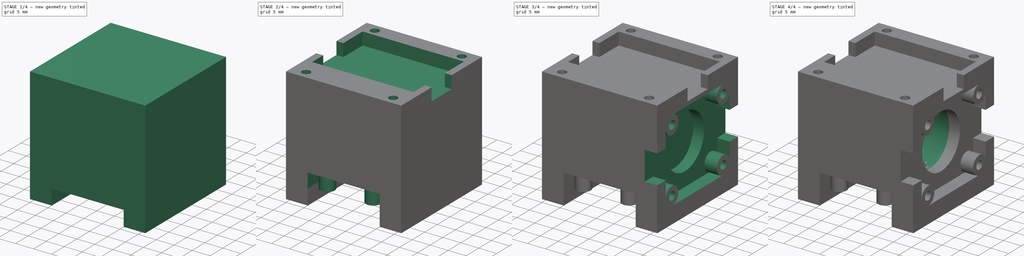
[diagram: build sequence overview — one tinted view per stage of 4, left to right]
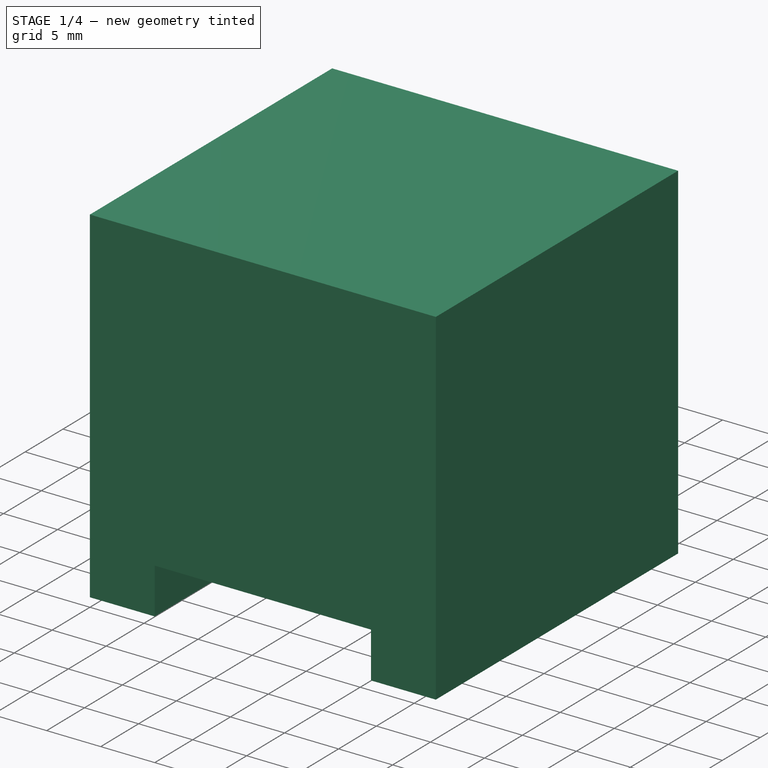
[diagram: stage 1 of 4 — iso view after this stage's code; geometry added in this stage tinted green]
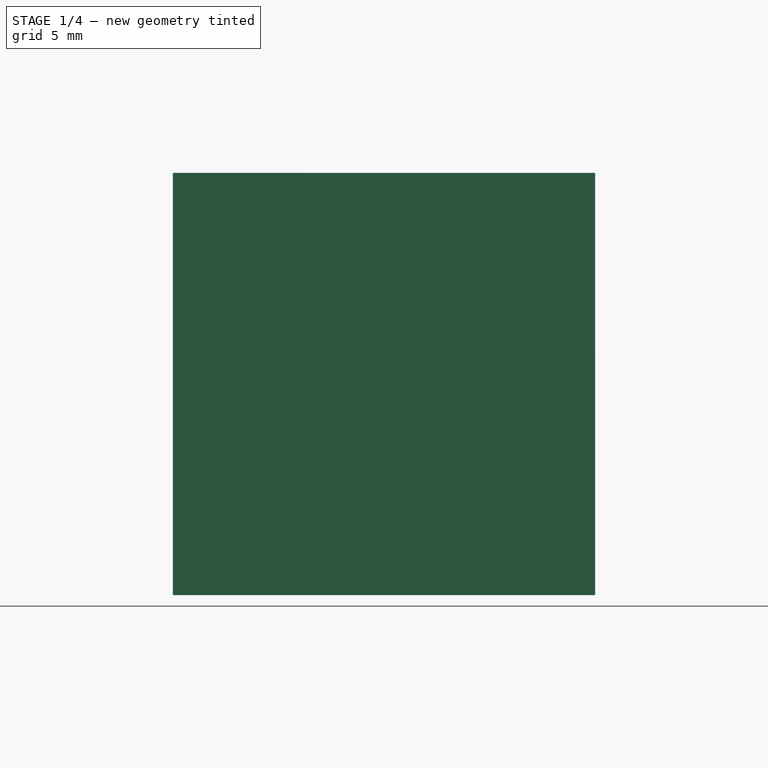
[diagram: stage 1 of 4 — front view after this stage's code; geometry added in this stage tinted green]
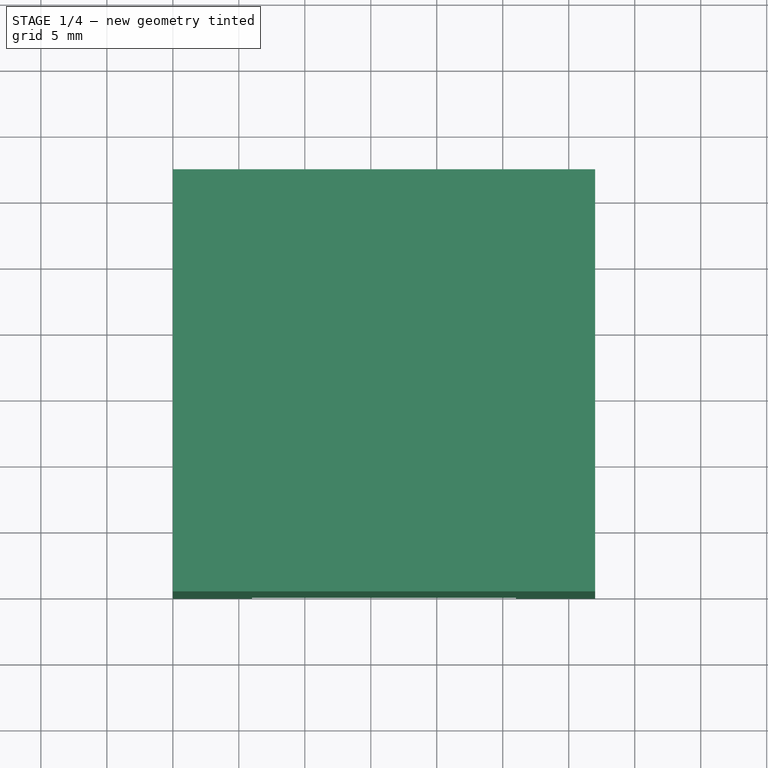
[diagram: stage 1 of 4 — top view after this stage's code; geometry added in this stage tinted green]
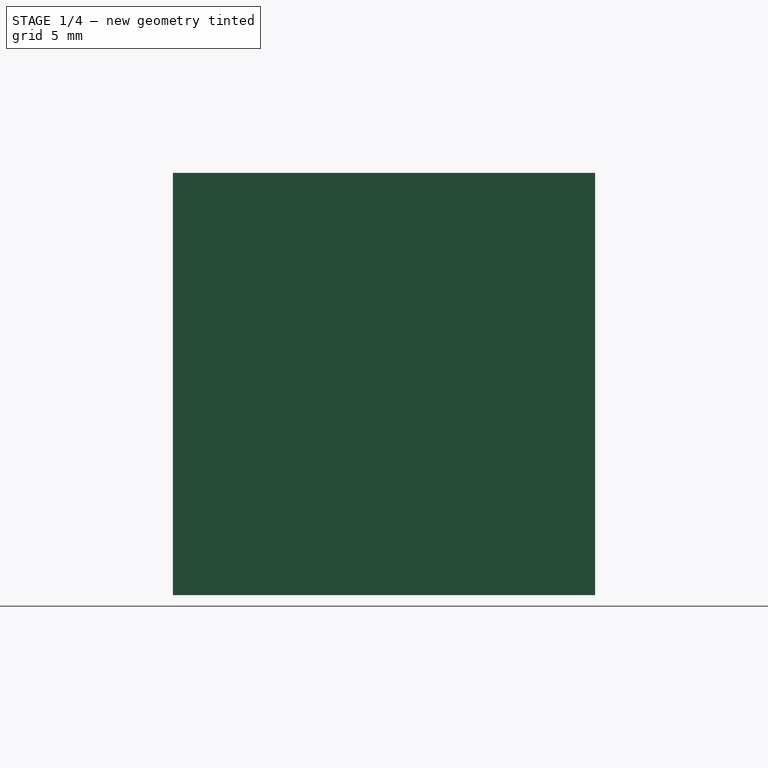
[diagram: stage 1 of 4 — right view after this stage's code; geometry added in this stage tinted green]
FCSTD DOCUMENT  (FreeCAD 0.19R24291 (Git))
Label: cube_v1
License: All rights reserved
LicenseURL: http://en.wikipedia.org/wiki/All_rights_reserved
objects: Sketcher::SketchObject×11, PartDesign::Pocket×10, Spreadsheet::Sheet×1, PartDesign::Pad×1, PartDesign::Hole×1, PartDesign::Body×1
note: 36 computed .brp shape members not serialized (recipe doc carries the construction recipe); baked Part::Feature solids carry a one-line shape summary decoded from their .brp

FEATURE [Spreadsheet::Sheet] Spreadsheet  label="cfg"
  cells = A2=side; B2(side)==32mm; E2=m2.5 through hole; F2(m25_through_d)==2.5mm; E3=m2.5 tapped hole; F3(m25_tapped_d)==2.3mm; A4=Trinkey dimensions; E4=m2.5 panhead thickness; F4(m25_panhead_t)==1.75mm; A5=hole x C-C; B5(trinkey_hole_x)==12.715mm; A6=hole y C-C; B6(trinkey_hole_y)==20.33mm; A7=clearance x; B7(trinkey_clearance_x)==20mm; C7=(excl USB); A8=clearance y; B8(trinkey_clearance_y)==27mm; A9=board thickness; B9(trinkey_board_t)==2.5mm; E9=stemma_clearance_l; F9(stemma_clearance_l)==8mm; A10=board x; B10(trinkey_board_x)==17.89mm; E10=stemma_clearance_h; F10(stemma_clearance_h)==3.5mm; A11=board y; B11(trinkey_board_y)==25.65mm; C11=(excl USB); A12=hole post diam; B12(trinkey_hole_post_d)==4mm; A13=hole post height; B13(trinkey_hole_post_h)==4mm; A15=SCD41 dimensions; A16=scd41_hole_x; B16(scd41_hole_x)==17.785mm; A17=scd41_hole_y; B17(scd41_hole_y)==20.325mm; E17=cone height; F17(cone_h)==side - scd41_sensor_clearance_h; A18=scd41_smd_clearance_h; B18(scd41_smd_clearance_h)==3.5mm; E18=cone base diam; F18(cone_db)==fan_d; A19=scd41_sensor_clearance_d; B19(scd41_sensor_clearance_d)==15mm; E19=cone tip diam; F19(cone_dt)==scd41_sensor_clearance_d; A20=scd41_sensor_clearance_h; B20(scd41_sensor_clearance_h)==6.5mm; E20=cone leg; F20(cone_leg)==(cone_db - cone_dt) / 2; E21=cone_angle; F21(cone_angle)==atan(cone_leg / cone_h) + 90deg; A22=OLED dimensions; A23=oled_hole_x; B23(oled_hole_x)==24.14mm; A24=oled_hole_y; B24(oled_hole_y)==27.205mm; A25=oled_hole_h; B25(oled_hole_h)==4mm; A26=post diam; B26(oled_post_d)==4mm; A27=clearance y; B27(oled_clearance_y)==20mm; A29=fan dimensions; A30=fan_hole_x; B30(fan_hole_x)==24.045mm; A31=fan_hole_y; B31(fan_hole_y)==fan_hole_x; A32=fan_d; B32(fan_d)==27.9mm; A33=fan_clearance_x; B33(fan_clearance_x)==31mm; A34=fan_clearance_h; B34(fan_clearance_h)==7.75mm; A36=speaker dimensions; A40=buttonpad dimensions
FEATURE [Sketcher::SketchObject] Sketch
  FullyConstrained = true
  MapMode = 5
  Support = -> [XY_Plane]
  expr: Constraints[10] = <<cfg>>.side
  expr: Constraints[9] = <<cfg>>.side
  sketch-geometry (4):
    g0: LineSegment StartX=0 StartY=0 StartZ=0 EndX=32 EndY=0 EndZ=0
    g1: LineSegment StartX=32 StartY=0 StartZ=0 EndX=32 EndY=32 EndZ=0
    g2: LineSegment StartX=32 StartY=32 StartZ=0 EndX=0 EndY=32 EndZ=0
    g3: LineSegment StartX=0 StartY=32 StartZ=0 EndX=0 EndY=0 EndZ=0
  constraints (11):
    c: Coincident(g0,g1)
    c: Coincident(g1,g2)
    c: Coincident(g2,g3)
    c: Coincident(g3,g0)
    c: Horizontal(g0)
    c: Horizontal(g2)
    c: Vertical(g1)
    c: Vertical(g3)
    c: Coincident(g0,g-1)
    c: Distance(g2) = 32
    c: Distance(g3) = 32
FEATURE [PartDesign::Pad] Pad  label="cube"
  Direction = (1,1,1)
  Length = 32
  Length2 = 100
  Profile = -> Sketch
  Type = 0
  expr: Length = <<cfg>>.side
FEATURE [Sketcher::SketchObject] Sketch001
  FullyConstrained = true
  MapMode = 5
  Placement = pos=(0,0,0) rot=(1,0,0;3.14159rad)
  Support = -> [Pad]
  expr: Constraints[13] = <<cfg>>.trinkey_clearance_y
  expr: Constraints[12] = <<cfg>>.trinkey_clearance_x
  expr: Constraints[10] = <<cfg>>.side / 2
  sketch-geometry (5):
    g0: LineSegment StartX=6 StartY=0 StartZ=0 EndX=26 EndY=0 EndZ=0
    g1: LineSegment StartX=26 StartY=0 StartZ=0 EndX=26 EndY=-27 EndZ=0
    g2: LineSegment StartX=26 StartY=-27 StartZ=0 EndX=6 EndY=-27 EndZ=0
    g3: LineSegment StartX=6 StartY=-27 StartZ=0 EndX=6 EndY=0 EndZ=0
    g4: LineSegment StartX=0 StartY=0 StartZ=0 EndX=16 EndY=0 EndZ=0
  constraints (14):
    c: Coincident(g0,g1)
    c: Coincident(g1,g2)
    c: Coincident(g2,g3)
    c: Coincident(g3,g0)
    c: Horizontal(g0)
    c: Horizontal(g2)
    c: Vertical(g1)
    c: Vertical(g3)
    c: PointOnObject(g0,g-1)
    c: Coincident(g4,g-1)
    c: Distance(g4) = 16
    c: Symmetric(g0,g0,g4)
    c: Distance(g2) = 20
    c: Distance(g1) = 27
FEATURE [PartDesign::Pocket] Pocket  label="trinkey pocket"
  BaseFeature = -> Pad
  Length = 4.25
  Length2 = 100
  Profile = -> Sketch001
  Type = 0
  expr: Length = <<cfg>>.trinkey_board_t + <<cfg>>.m25_panhead_t
FEATURE [Sketcher::SketchObject] Sketch002
  FullyConstrained = true
  MapMode = 5
  Placement = pos=(0,0,4.25) rot=(1,0,0;3.14159rad)
  Support = -> [Pocket]
  expr: Constraints[38] = <<cfg>>.m25_tapped_d
  expr: Constraints[31] = <<cfg>>.trinkey_board_y
  expr: Constraints[30] = <<cfg>>.trinkey_board_x
  expr: Constraints[19] = <<cfg>>.trinkey_hole_y
  expr: Constraints[18] = <<cfg>>.trinkey_hole_x
  expr: Constraints[17] = <<cfg>>.side / 2
  sketch-geometry (15):
    g0: Circle CenterX=9.6425 CenterY=-2.66 CenterZ=0 NormalX=0 NormalY=0 NormalZ=1 AngleXU=0 Radius=1.15
    g1: Circle CenterX=22.3575 CenterY=-2.66 CenterZ=0 NormalX=0 NormalY=0 NormalZ=1 AngleXU=0 Radius=1.15
    g2: Circle CenterX=9.6425 CenterY=-22.99 CenterZ=0 NormalX=0 NormalY=0 NormalZ=1 AngleXU=0 Radius=1.15
    g3: Circle CenterX=22.3575 CenterY=-22.99 CenterZ=0 NormalX=0 NormalY=0 NormalZ=1 AngleXU=0 Radius=1.15
    g4: LineSegment StartX=9.6425 StartY=0 StartZ=0 EndX=22.3575 EndY=0 EndZ=0
    g5: LineSegment StartX=22.3575 StartY=0 StartZ=0 EndX=22.3575 EndY=-22.99 EndZ=0
    g6: LineSegment StartX=22.3575 StartY=-22.99 StartZ=0 EndX=9.6425 EndY=-22.99 EndZ=0
    g7: LineSegment StartX=9.6425 StartY=-22.99 StartZ=0 EndX=9.6425 EndY=0 EndZ=0
    g8: LineSegment StartX=9.6425 StartY=-2.66 StartZ=0 EndX=22.3575 EndY=-2.66 EndZ=0
    g9: LineSegment StartX=0 StartY=0 StartZ=0 EndX=16 EndY=0 EndZ=0
    g10: LineSegment StartX=7.055 StartY=-25.65 StartZ=0 EndX=24.945 EndY=-25.65 EndZ=0
    g11: LineSegment StartX=24.945 StartY=-25.65 StartZ=0 EndX=24.945 EndY=0 EndZ=0
    g12: LineSegment StartX=24.945 StartY=0 StartZ=0 EndX=7.055 EndY=0 EndZ=0
    g13: LineSegment StartX=7.055 StartY=0 StartZ=0 EndX=7.055 EndY=-25.65 EndZ=0
    g14: LineSegment StartX=9.6425 StartY=-12.825 StartZ=0 EndX=7.055 EndY=-12.825 EndZ=0
  constraints (39):
    c: Coincident(g4,g5)
    c: Coincident(g5,g6)
    c: Coincident(g6,g7)
    c: Coincident(g7,g4)
    c: Horizontal(g4)
    c: Horizontal(g6)
    c: Vertical(g5)
    c: Vertical(g7)
    c: PointOnObject(g4,g-1)
    c: Coincident(g5,g3)
    c: PointOnObject(g0,g7)
    c: PointOnObject(g1,g5)
    c: Coincident(g2,g6)
    c: Coincident(g8,g0)
    c: Coincident(g8,g1)
    c: Horizontal(g8)
    c: Coincident(g9,g-1)
    c: Distance(g-1,g9) = 16
    c: Distance(g4) = 12.715
    c: Distance(g1,g3) = 20.33
    c: Symmetric(g4,g4,g9)
    c: Coincident(g10,g11)
    c: Coincident(g11,g12)
    c: Coincident(g12,g13)
    c: Coincident(g13,g10)
    c: Horizontal(g10)
    c: Horizontal(g12)
    c: Vertical(g11)
    c: Vertical(g13)
    c: Symmetric(g12,g11,g9)
    c: Distance(g10) = 17.89
    c: Distance(g11) = 25.65
    c: Horizontal(g14)
    c: Symmetric(g12,g10,g14)
    c: Symmetric(g0,g2,g14)
    c: Equal(g0,g1)
    c: Equal(g1,g3)
    c: Equal(g3,g2)
    c: Diameter(g0) = 2.3
FEATURE [PartDesign::Pocket] Pocket001  label="trinkey mounting holes"
  BaseFeature = -> Pocket
  Length = 4
  Length2 = 100
  Profile = -> Sketch002
  Type = 0
  expr: Length = <<cfg>>.trinkey_hole_post_h
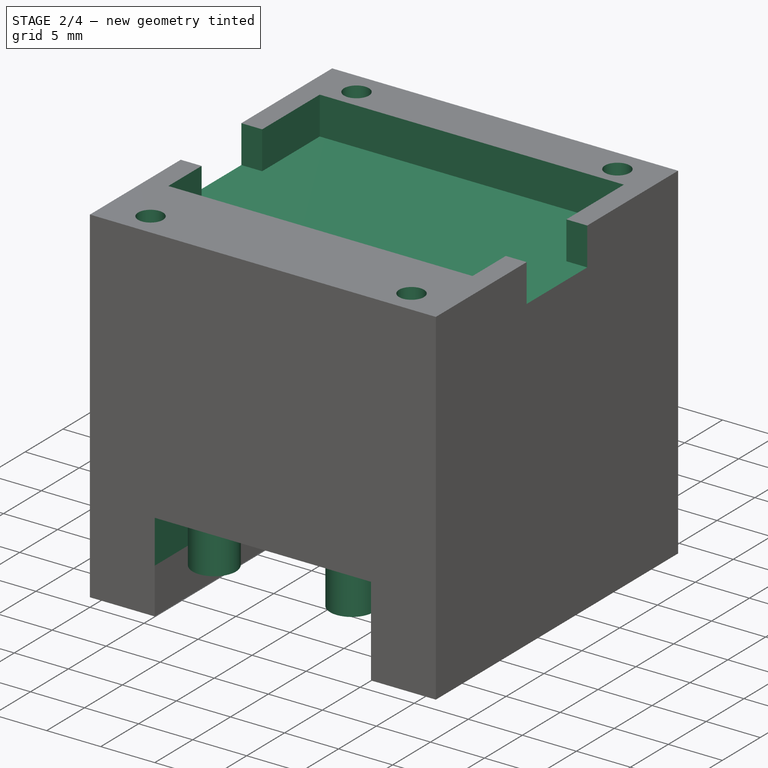
[diagram: stage 2 of 4 — iso view after this stage's code; geometry added in this stage tinted green]
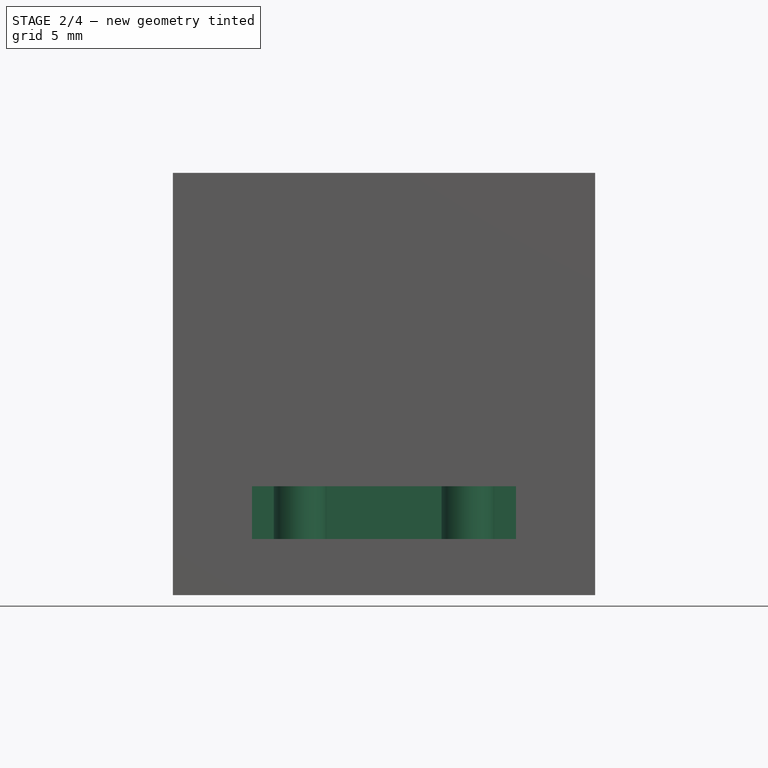
[diagram: stage 2 of 4 — front view after this stage's code; geometry added in this stage tinted green]
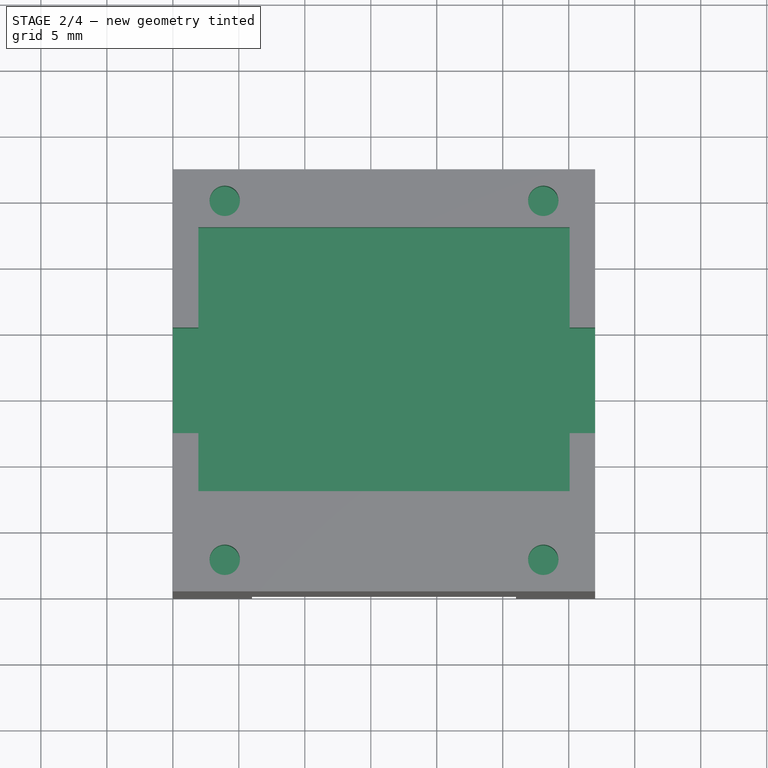
[diagram: stage 2 of 4 — top view after this stage's code; geometry added in this stage tinted green]
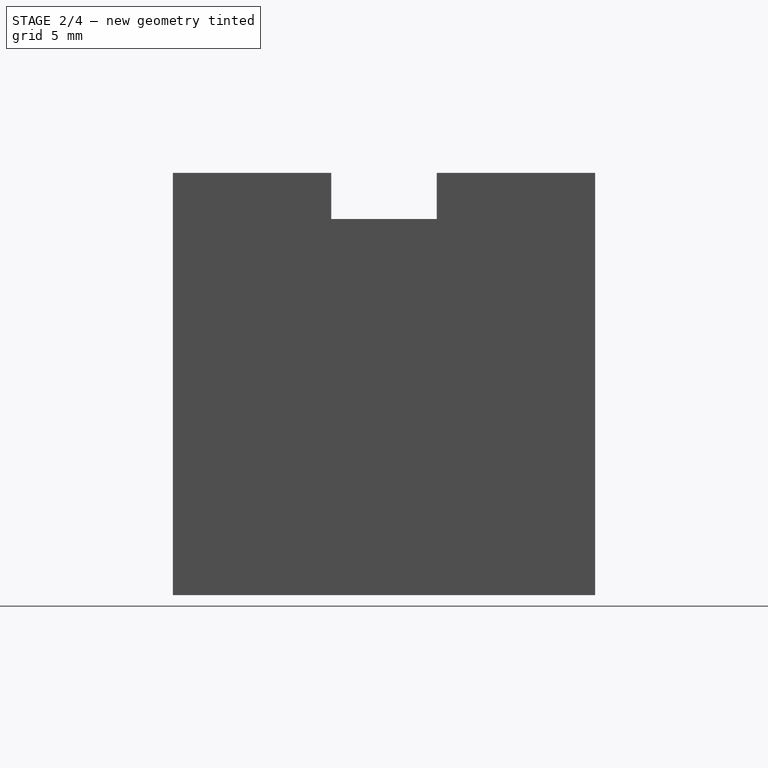
[diagram: stage 2 of 4 — right view after this stage's code; geometry added in this stage tinted green]
FEATURE [Sketcher::SketchObject] Sketch003
  FullyConstrained = true
  MapMode = 5
  Placement = pos=(0,0,4.25) rot=(1,0,0;3.14159rad)
  Support = -> [Pocket001]
  expr: Constraints[36] = <<cfg>>.trinkey_board_y
  expr: Constraints[16] = <<cfg>>.trinkey_hole_y
  expr: Constraints[22] = <<cfg>>.side / 2
  expr: Constraints[15] = <<cfg>>.trinkey_hole_x
  expr: Constraints[37] = <<cfg>>.trinkey_board_x
  expr: Constraints[25] = <<cfg>>.trinkey_clearance_x
  expr: Constraints[23] = <<cfg>>.trinkey_clearance_y
  expr: Constraints[46] = <<cfg>>.trinkey_hole_post_d
  sketch-geometry (19):
    g0: Circle CenterX=22.3575 CenterY=-22.99 CenterZ=0 NormalX=0 NormalY=0 NormalZ=1 AngleXU=0 Radius=2
    g1: Circle CenterX=9.6425 CenterY=-22.99 CenterZ=0 NormalX=0 NormalY=0 NormalZ=1 AngleXU=0 Radius=2
    g2: LineSegment StartX=26 StartY=0 StartZ=0 EndX=26 EndY=-27 EndZ=0
    g3: LineSegment StartX=26 StartY=-27 StartZ=0 EndX=6 EndY=-27 EndZ=0
    g4: LineSegment StartX=6 StartY=-27 StartZ=0 EndX=6 EndY=0 EndZ=0
    g5: LineSegment StartX=9.6425 StartY=-2.66 StartZ=0 EndX=22.3575 EndY=-2.66 EndZ=0
    g6: LineSegment StartX=22.3575 StartY=-2.66 StartZ=0 EndX=22.3575 EndY=-22.99 EndZ=0
    g7: LineSegment StartX=22.3575 StartY=-22.99 StartZ=0 EndX=9.6425 EndY=-22.99 EndZ=0
    g8: LineSegment StartX=9.6425 StartY=-22.99 StartZ=0 EndX=9.6425 EndY=-2.66 EndZ=0
    g9: LineSegment StartX=0 StartY=0 StartZ=0 EndX=16 EndY=0 EndZ=0
    g10: LineSegment StartX=16 StartY=0 StartZ=0 EndX=16 EndY=-2.66 EndZ=0
    g11: LineSegment StartX=7.055 StartY=0 StartZ=0 EndX=24.945 EndY=0 EndZ=0
    g12: LineSegment StartX=24.945 StartY=0 StartZ=0 EndX=24.945 EndY=-25.65 EndZ=0
    g13: LineSegment StartX=24.945 StartY=-25.65 StartZ=0 EndX=7.055 EndY=-25.65 EndZ=0
    g14: LineSegment StartX=7.055 StartY=-25.65 StartZ=0 EndX=7.055 EndY=0 EndZ=0
    g15: LineSegment StartX=7.055 StartY=-12.825 StartZ=0 EndX=9.6425 EndY=-12.825 EndZ=0
    g16: Circle CenterX=9.6425 CenterY=-2.66 CenterZ=0 NormalX=0 NormalY=0 NormalZ=1 AngleXU=0 Radius=2
    g17: Circle CenterX=22.3575 CenterY=-2.66 CenterZ=0 NormalX=0 NormalY=0 NormalZ=1 AngleXU=0 Radius=2
    g18: LineSegment StartX=26 StartY=0 StartZ=0 EndX=6 EndY=0 EndZ=0
  constraints (49):
    c: Coincident(g2,g3)
    c: Coincident(g3,g4)
    c: Horizontal(g3)
    c: Vertical(g2)
    c: Vertical(g4)
    c: Coincident(g5,g6)
    c: Coincident(g6,g7)
    c: Coincident(g7,g8)
    c: Coincident(g8,g5)
    c: Horizontal(g5)
    c: Horizontal(g7)
    c: Vertical(g6)
    c: Vertical(g8)
    c: Coincident(g6,g0)
    c: Coincident(g1,g7)
    c: Distance(g5) = 12.715
    c: Distance(g6) = 20.33
    c: Equal(g0,g1)
    c: Coincident(g9,g-1)
    c: Horizontal(g9)
    c: Coincident(g10,g9)
    c: Vertical(g10)
    c: Distance(g9) = 16
    c: Distance(g2) = 27
    c: Symmetric(g4,g2,g9)
    c: Distance(g3) = 20
    c: Coincident(g11,g12)
    c: Coincident(g12,g13)
    c: Coincident(g13,g14)
    c: Coincident(g14,g11)
    c: Horizontal(g11)
    c: Horizontal(g13)
    c: Vertical(g12)
    c: Vertical(g14)
    c: Horizontal(g15)
    c: Symmetric(g11,g13,g15)
    c: Distance(g12) = 25.65
    c: Distance(g13) = 17.89
    c: Symmetric(g11,g11,g9)
    c: Coincident(g16,g5)
    c: Coincident(g17,g5)
    c: Coincident(g18,g2)
    c: Coincident(g18,g4)
    c: Horizontal(g18)
    c: Equal(g0,g17)
    c: Equal(g17,g16)
    c: Diameter(g16) = 4
    c: Symmetric(g16,g17,g10)
    c: Symmetric(g16,g1,g15)
FEATURE [PartDesign::Pocket] Pocket002  label="trinkey component clearance"
  BaseFeature = -> Pocket001
  Length = 4
  Length2 = 100
  Profile = -> Sketch003
  Type = 0
  expr: Length = <<cfg>>.trinkey_hole_post_h
FEATURE [Sketcher::SketchObject] Sketch004
  FullyConstrained = true
  MapMode = 5
  Placement = pos=(0,0,32) rot=(0,0,1;0rad)
  Support = -> [Pocket002]
  expr: Constraints[15] = <<cfg>>.m25_tapped_d
  expr: Constraints[16] = <<cfg>>.oled_hole_x
  expr: Constraints[17] = <<cfg>>.oled_hole_y
  expr: Constraints[29] = <<cfg>>.side / 2
  sketch-geometry (12):
    g0: LineSegment StartX=3.93 StartY=29.6025 StartZ=0 EndX=28.07 EndY=29.6025 EndZ=0
    g1: LineSegment StartX=28.07 StartY=29.6025 StartZ=0 EndX=28.07 EndY=2.3975 EndZ=0
    g2: LineSegment StartX=28.07 StartY=2.3975 StartZ=0 EndX=3.93 EndY=2.3975 EndZ=0
    g3: LineSegment StartX=3.93 StartY=2.3975 StartZ=0 EndX=3.93 EndY=29.6025 EndZ=0
    g4: Circle CenterX=3.93 CenterY=29.6025 CenterZ=0 NormalX=0 NormalY=0 NormalZ=1 AngleXU=0 Radius=1.15
    g5: Circle CenterX=28.07 CenterY=29.6025 CenterZ=0 NormalX=0 NormalY=0 NormalZ=1 AngleXU=0 Radius=1.15
    g6: Circle CenterX=3.93 CenterY=2.3975 CenterZ=0 NormalX=0 NormalY=0 NormalZ=1 AngleXU=0 Radius=1.15
    g7: Circle CenterX=28.07 CenterY=2.3975 CenterZ=0 NormalX=0 NormalY=0 NormalZ=1 AngleXU=0 Radius=1.15
    g8: LineSegment StartX=0 StartY=0 StartZ=0 EndX=16 EndY=0 EndZ=0
    g9: LineSegment StartX=16 StartY=0 StartZ=0 EndX=16 EndY=2.3975 EndZ=0
    g10: LineSegment StartX=0 StartY=0 StartZ=0 EndX=0 EndY=16 EndZ=0
    g11: LineSegment StartX=0 StartY=16 StartZ=0 EndX=3.93 EndY=16 EndZ=0
  constraints (31):
    c: Coincident(g0,g1)
    c: Coincident(g1,g2)
    c: Coincident(g2,g3)
    c: Coincident(g3,g0)
    c: Horizontal(g0)
    c: Horizontal(g2)
    c: Vertical(g1)
    c: Vertical(g3)
    c: Coincident(g4,g0)
    c: Coincident(g5,g0)
    c: Coincident(g6,g2)
    c: Coincident(g7,g1)
    c: Equal(g4,g5)
    c: Equal(g5,g7)
    c: Equal(g6,g7)
    c: Diameter(g4) = 2.3
    c: Distance(g0) = 24.14
    c: Distance(g1) = 27.205
    c: PointOnObject(g8,g-2)
    c: PointOnObject(g8,g-1)
    c: Horizontal(g8)
    c: Coincident(g9,g8)
    c: Vertical(g9)
    c: Coincident(g10,g-1)
    c: Vertical(g10)
    c: Coincident(g11,g10)
    c: Symmetric(g6,g7,g9)
    c: Symmetric(g6,g4,g11)
    c: Horizontal(g11)
    c: Distance(g8) = 16
    c: Equal(g8,g10)
FEATURE [PartDesign::Pocket] Pocket003  label="oled mounting holes"
  BaseFeature = -> Pocket002
  Length = 4
  Length2 = 100
  Profile = -> Sketch004
  Type = 0
  expr: Length = <<cfg>>.oled_hole_h
FEATURE [Sketcher::SketchObject] Sketch005
  FullyConstrained = true
  MapMode = 5
  Placement = pos=(0,0,32) rot=(0,0,1;0rad)
  Support = -> [Pocket003]
  expr: Constraints[8] = <<cfg>>.oled_hole_x
  expr: Constraints[9] = <<cfg>>.oled_hole_y
  expr: Constraints[21] = <<cfg>>.side / 2
  expr: Constraints[25] = <<cfg>>.oled_post_d
  expr: Constraints[58] = <<cfg>>.oled_clearance_y
  expr: Constraints[64] = <<cfg>>.stemma_clearance_l
  sketch-geometry (24):
    g0: LineSegment StartX=3.93 StartY=2.3975 StartZ=0 EndX=28.07 EndY=2.3975 EndZ=0
    g1: LineSegment StartX=28.07 StartY=2.3975 StartZ=0 EndX=28.07 EndY=29.6025 EndZ=0
    g2: LineSegment StartX=28.07 StartY=29.6025 StartZ=0 EndX=3.93 EndY=29.6025 EndZ=0
    g3: LineSegment StartX=3.93 StartY=29.6025 StartZ=0 EndX=3.93 EndY=2.3975 EndZ=0
    g4: LineSegment StartX=0 StartY=0 StartZ=0 EndX=16 EndY=0 EndZ=0
    g5: LineSegment StartX=16 StartY=0 StartZ=0 EndX=16 EndY=2.3975 EndZ=0
    g6: LineSegment StartX=3.93 StartY=16 StartZ=0 EndX=0 EndY=16 EndZ=0
    g7: LineSegment StartX=0 StartY=16 StartZ=0 EndX=0 EndY=0 EndZ=0
    g8: Circle CenterX=3.93 CenterY=29.6025 CenterZ=0 NormalX=0 NormalY=0 NormalZ=1 AngleXU=0 Radius=2
    g9: Circle CenterX=28.07 CenterY=29.6025 CenterZ=0 NormalX=0 NormalY=0 NormalZ=1 AngleXU=0 Radius=2
    g10: LineSegment StartX=1.93 StartY=27.6025 StartZ=0 EndX=30.07 EndY=27.6025 EndZ=0
    g11: LineSegment StartX=30.07 StartY=27.6025 StartZ=0 EndX=30.07 EndY=20 EndZ=0
    g12: LineSegment StartX=30.07 StartY=7.6025 StartZ=0 EndX=1.93 EndY=7.6025 EndZ=0
    g13: LineSegment StartX=1.93 StartY=7.6025 StartZ=0 EndX=1.93 EndY=12 EndZ=0
    g14: LineSegment StartX=1.93 StartY=27.6025 StartZ=0 EndX=1.93 EndY=29.6025 EndZ=0
    g15: LineSegment StartX=30.07 StartY=27.6025 StartZ=0 EndX=30.07 EndY=29.6025 EndZ=0
    g16: LineSegment StartX=1.93 StartY=20 StartZ=0 EndX=0 EndY=20 EndZ=0
    g17: LineSegment StartX=0 StartY=12 StartZ=0 EndX=0 EndY=20 EndZ=0
    g18: LineSegment StartX=0 StartY=12 StartZ=0 EndX=1.93 EndY=12 EndZ=0
    g19: LineSegment StartX=30.07 StartY=12 StartZ=0 EndX=32 EndY=12 EndZ=0
    g20: LineSegment StartX=32 StartY=12 StartZ=0 EndX=32 EndY=20 EndZ=0
    g21: LineSegment StartX=32 StartY=20 StartZ=0 EndX=30.07 EndY=20 EndZ=0
    g22: LineSegment StartX=1.93 StartY=20 StartZ=0 EndX=1.93 EndY=27.6025 EndZ=0
    g23: LineSegment StartX=30.07 StartY=12 StartZ=0 EndX=30.07 EndY=7.6025 EndZ=0
  constraints (65):
    c: Coincident(g0,g1)
    c: Coincident(g1,g2)
    c: Coincident(g2,g3)
    c: Coincident(g3,g0)
    c: Horizontal(g0)
    c: Horizontal(g2)
    c: Vertical(g1)
    c: Vertical(g3)
    c: Distance(g2) = 24.14
    c: Distance(g1) = 27.205
    c: Coincident(g4,g5)
    c: Coincident(g6,g7)
    c: Coincident(g7,g4)
    c: Horizontal(g4)
    c: Horizontal(g6)
    c: Vertical(g5)
    c: Vertical(g7)
    c: Coincident(g4,g-1)
    c: Symmetric(g2,g0,g6)
    c: Symmetric(g0,g0,g5)
    c: Equal(g7,g4)
    c: Distance(g4) = 16
    c: Coincident(g8,g2)
    c: Coincident(g9,g1)
    c: Equal(g8,g9)
    c: Diameter(g8) = 4
    c: Coincident(g10,g11)
    c: Coincident(g23,g12)
    c: Coincident(g12,g13)
    c: Coincident(g22,g10)
    c: Horizontal(g10)
    c: Horizontal(g12)
    c: Vertical(g11)
    c: Vertical(g13)
    c: Coincident(g14,g10)
    c: PointOnObject(g14,g8)
    c: Tangent(g14,g8)
    c: Coincident(g15,g10)
    c: PointOnObject(g15,g9)
    c: Vertical(g15)
    c: Vertical(g14)
    c: Tangent(g10,g8)
    c: Tangent(g15,g9)
    c: PointOnObject(g16,g-2)
    c: Horizontal(g16)
    c: Coincident(g17,g16)
    c: Coincident(g18,g17)
    c: Horizontal(g18)
    c: Horizontal(g19)
    c: Vertical(g20)
    c: Coincident(g21,g20)
    c: Horizontal(g21)
    c: Coincident(g22,g16)
    c: Tangent(g13,g22)
    c: Coincident(g11,g21)
    c: Coincident(g23,g19)
    c: Tangent(g11,g23)
    c: Coincident(g13,g18)
    c: Distance(g10,g12) = 20
    c: Symmetric(g17,g16,g6)
    c: Horizontal(g16,g20)
    c: Equal(g17,g20)
    c: Equal(g16,g21)
    c: Coincident(g19,g20)
    c: Distance(g20) = 8
FEATURE [PartDesign::Pocket] Pocket004  label="oled component clearance"
  BaseFeature = -> Pocket003
  Length = 3.5
  Length2 = 100
  Profile = -> Sketch005
  Type = 0
  expr: Length = <<cfg>>.stemma_clearance_h
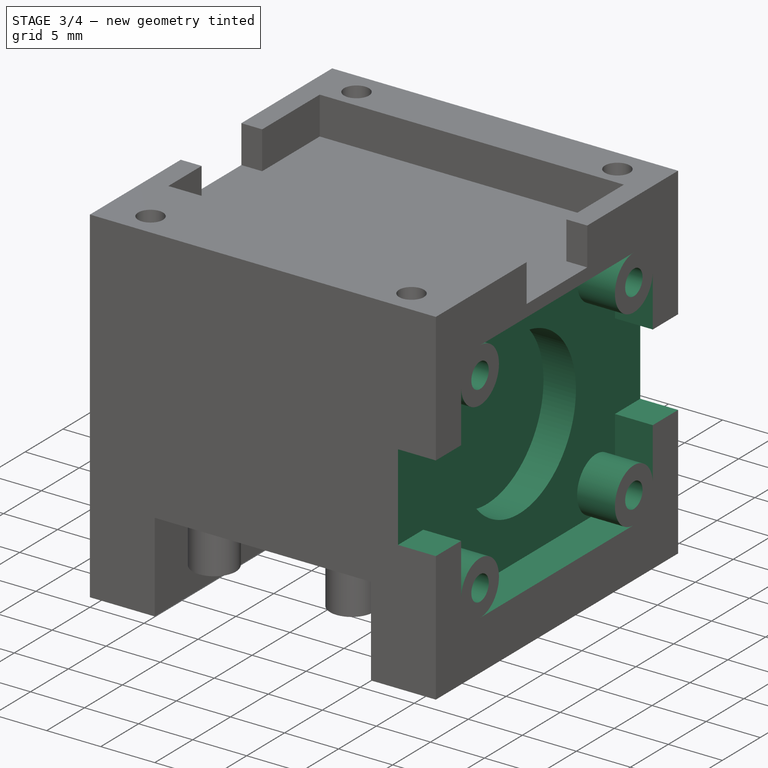
[diagram: stage 3 of 4 — iso view after this stage's code; geometry added in this stage tinted green]
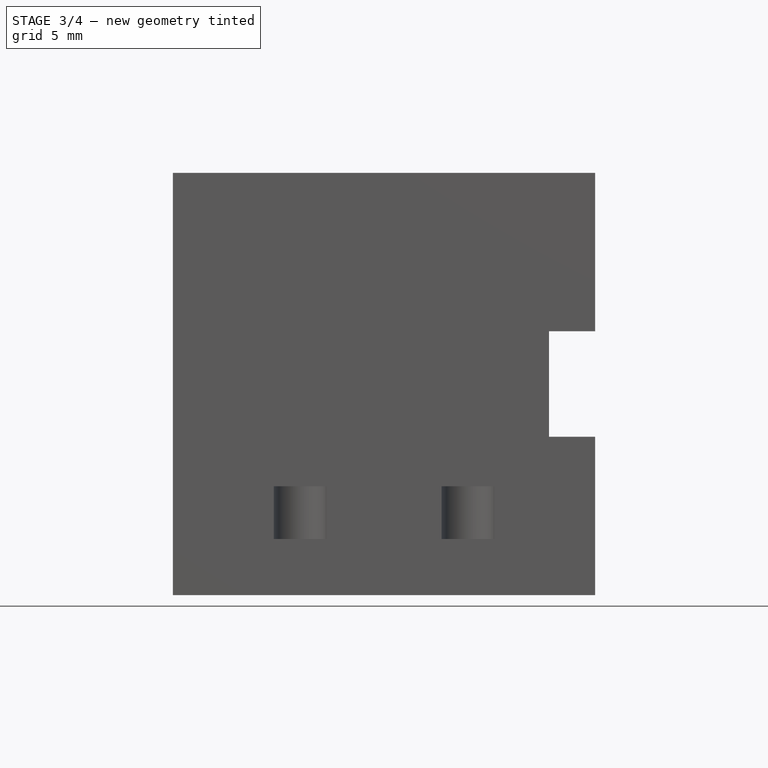
[diagram: stage 3 of 4 — front view after this stage's code; geometry added in this stage tinted green]
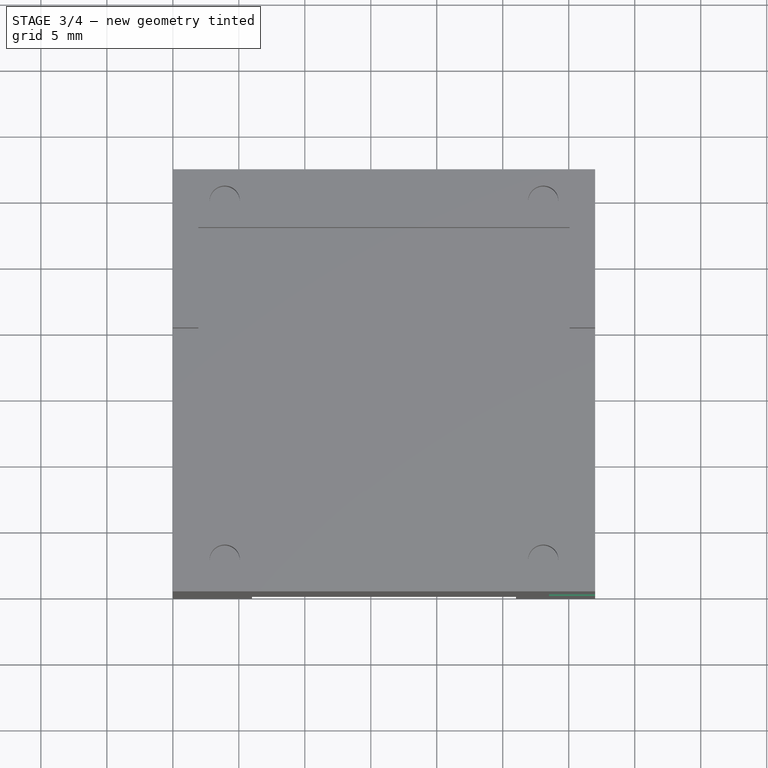
[diagram: stage 3 of 4 — top view after this stage's code; geometry added in this stage tinted green]
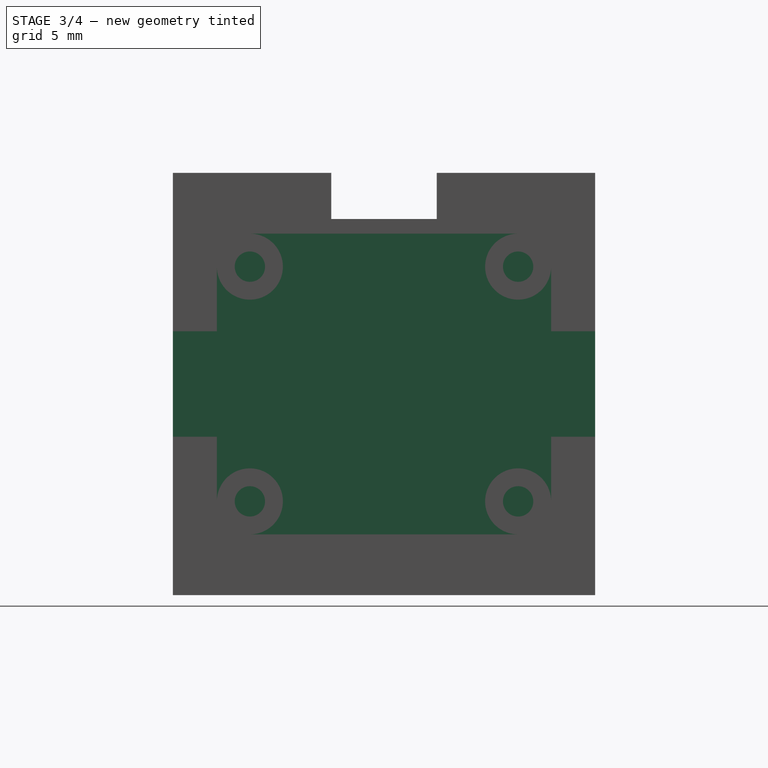
[diagram: stage 3 of 4 — right view after this stage's code; geometry added in this stage tinted green]
FEATURE [Sketcher::SketchObject] Sketch006
  FullyConstrained = true
  MapMode = 5
  Placement = pos=(32,0,0) rot=(0.57735,0.57735,0.57735;2.0944rad)
  Support = -> [Pocket004]
  expr: Constraints[29] = <<cfg>>.m25_tapped_d
  expr: Constraints[25] = <<cfg>>.scd41_hole_x
  expr: Constraints[24] = <<cfg>>.scd41_hole_y
  expr: Constraints[23] = <<cfg>>.side / 2
  sketch-geometry (12):
    g0: LineSegment StartX=5.8375 StartY=24.8925 StartZ=0 EndX=26.1625 EndY=24.8925 EndZ=0
    g1: LineSegment StartX=26.1625 StartY=24.8925 StartZ=0 EndX=26.1625 EndY=7.1075 EndZ=0
    g2: LineSegment StartX=26.1625 StartY=7.1075 StartZ=0 EndX=5.8375 EndY=7.1075 EndZ=0
    g3: LineSegment StartX=5.8375 StartY=7.1075 StartZ=0 EndX=5.8375 EndY=24.8925 EndZ=0
    g4: Circle CenterX=5.8375 CenterY=24.8925 CenterZ=0 NormalX=0 NormalY=0 NormalZ=1 AngleXU=0 Radius=1.15
    g5: Circle CenterX=26.1625 CenterY=24.8925 CenterZ=0 NormalX=0 NormalY=0 NormalZ=1 AngleXU=0 Radius=1.15
    g6: Circle CenterX=26.1625 CenterY=7.1075 CenterZ=0 NormalX=0 NormalY=0 NormalZ=1 AngleXU=0 Radius=1.15
    g7: Circle CenterX=5.8375 CenterY=7.1075 CenterZ=0 NormalX=0 NormalY=0 NormalZ=1 AngleXU=0 Radius=1.15
    g8: LineSegment StartX=0 StartY=0 StartZ=0 EndX=16 EndY=0 EndZ=0
    g9: LineSegment StartX=16 StartY=0 StartZ=0 EndX=16 EndY=7.1075 EndZ=0
    g10: LineSegment StartX=5.8375 StartY=16 StartZ=0 EndX=0 EndY=16 EndZ=0
    g11: LineSegment StartX=0 StartY=16 StartZ=0 EndX=0 EndY=0 EndZ=0
  constraints (30):
    c: Coincident(g0,g1)
    c: Coincident(g1,g2)
    c: Coincident(g2,g3)
    c: Coincident(g3,g0)
    c: Horizontal(g0)
    c: Horizontal(g2)
    c: Vertical(g1)
    c: Vertical(g3)
    c: Coincident(g4,g0)
    c: Coincident(g5,g0)
    c: Coincident(g6,g1)
    c: Coincident(g7,g2)
    c: Coincident(g8,g9)
    c: Coincident(g10,g11)
    c: Coincident(g11,g8)
    c: Horizontal(g8)
    c: Horizontal(g10)
    c: Vertical(g9)
    c: Vertical(g11)
    c: Coincident(g8,g-1)
    c: Symmetric(g7,g4,g10)
    c: Symmetric(g7,g6,g9)
    c: Equal(g8,g11)
    c: Distance(g8) = 16
    c: Distance(g2) = 20.325
    c: Distance(g3) = 17.785
    c: Equal(g7,g4)
    c: Equal(g4,g5)
    c: Equal(g5,g6)
    c: Diameter(g4) = 2.3
FEATURE [PartDesign::Pocket] Pocket005  label="sensor mounting holes"
  BaseFeature = -> Pocket004
  Length = 4
  Length2 = 100
  Profile = -> Sketch006
  Type = 0
  expr: Length = 4mm
FEATURE [Sketcher::SketchObject] Sketch007
  FullyConstrained = false
  MapMode = 5
  Placement = pos=(32,0,0) rot=(0.57735,0.57735,0.57735;2.0944rad)
  Support = -> [Pocket005]
  expr: Constraints[57] = <<cfg>>.stemma_clearance_l
  expr: Constraints[23] = <<cfg>>.scd41_hole_x
  expr: Constraints[22] = <<cfg>>.scd41_hole_y
  expr: Constraints[21] = <<cfg>>.side / 2
  sketch-geometry (24):
    g0: LineSegment StartX=5.8375 StartY=24.8925 StartZ=0 EndX=26.1625 EndY=24.8925 EndZ=0
    g1: LineSegment StartX=26.1625 StartY=24.8925 StartZ=0 EndX=26.1625 EndY=7.1075 EndZ=0
    g2: LineSegment StartX=26.1625 StartY=7.1075 StartZ=0 EndX=5.8375 EndY=7.1075 EndZ=0
    g3: LineSegment StartX=5.8375 StartY=7.1075 StartZ=0 EndX=5.8375 EndY=24.8925 EndZ=0
    g4: LineSegment StartX=0 StartY=0 StartZ=0 EndX=16 EndY=0 EndZ=0
    g5: LineSegment StartX=16 StartY=0 StartZ=0 EndX=16 EndY=7.1075 EndZ=0
    g6: LineSegment StartX=5.8375 StartY=16 StartZ=0 EndX=0 EndY=16 EndZ=0
    g7: LineSegment StartX=0 StartY=16 StartZ=0 EndX=0 EndY=0 EndZ=0
    g8: ArcOfCircle CenterX=5.8375 CenterY=24.8925 CenterZ=0 NormalX=0 NormalY=0 NormalZ=1 AngleXU=0 Radius=2.5 StartAngle=3.14159 EndAngle=7.85398
    g9: ArcOfCircle CenterX=26.1625 CenterY=24.8925 CenterZ=0 NormalX=0 NormalY=0 NormalZ=1 AngleXU=0 Radius=2.5 StartAngle=1.5708 EndAngle=6.28319
    g10: ArcOfCircle CenterX=26.1625 CenterY=7.1075 CenterZ=0 NormalX=0 NormalY=0 NormalZ=1 AngleXU=0 Radius=2.5 StartAngle=6.28319 EndAngle=10.9956
    g11: ArcOfCircle CenterX=5.8375 CenterY=7.1075 CenterZ=0 NormalX=0 NormalY=0 NormalZ=1 AngleXU=0 Radius=2.5 StartAngle=4.71239 EndAngle=9.42478
    g12: LineSegment StartX=5.8375 StartY=4.6075 StartZ=0 EndX=26.1625 EndY=4.6075 EndZ=0
    g13: LineSegment StartX=3.3375 StartY=24.8925 StartZ=0 EndX=3.3375 EndY=20 EndZ=0
    g14: LineSegment StartX=28.6625 StartY=24.8925 StartZ=0 EndX=28.6625 EndY=20 EndZ=0
    g15: LineSegment StartX=5.8375 StartY=27.3925 StartZ=0 EndX=26.1625 EndY=27.3925 EndZ=0
    g16: LineSegment StartX=3.3375 StartY=12 StartZ=0 EndX=0 EndY=12 EndZ=0
    g17: LineSegment StartX=0 StartY=12 StartZ=0 EndX=0 EndY=20 EndZ=0
    g18: LineSegment StartX=0 StartY=20 StartZ=0 EndX=3.3375 EndY=20 EndZ=0
    g19: LineSegment StartX=28.6625 StartY=12 StartZ=0 EndX=32 EndY=12 EndZ=0
    g20: LineSegment StartX=32 StartY=12 StartZ=0 EndX=32 EndY=20 EndZ=0
    g21: LineSegment StartX=32 StartY=20 StartZ=0 EndX=28.6625 EndY=20 EndZ=0
    g22: LineSegment StartX=3.3375 StartY=12 StartZ=0 EndX=3.3375 EndY=7.1075 EndZ=0
    g23: LineSegment StartX=28.6625 StartY=12 StartZ=0 EndX=28.6625 EndY=7.1075 EndZ=0
  constraints (65):
    c: Coincident(g0,g1)
    c: Coincident(g1,g2)
    c: Coincident(g2,g3)
    c: Coincident(g3,g0)
    c: Horizontal(g0)
    c: Horizontal(g2)
    c: Vertical(g1)
    c: Vertical(g3)
    c: Coincident(g4,g5)
    c: Coincident(g6,g7)
    c: Coincident(g7,g4)
    c: Horizontal(g4)
    c: Horizontal(g6)
    c: Vertical(g5)
    c: Vertical(g7)
    c: Coincident(g4,g-1)
    c: Equal(g7,g4)
    c: Coincident(g8,g0)
    c: Coincident(g9,g0)
    c: Coincident(g10,g1)
    c: Coincident(g11,g2)
    c: Distance(g4) = 16
    c: Distance(g0) = 20.325
    c: Distance(g1) = 17.785
    c: Symmetric(g8,g11,g6)
    c: Symmetric(g11,g10,g5)
    c: Equal(g8,g9)
    c: Equal(g9,g10)
    c: Equal(g10,g11)
    c: Diameter(g8) = 5
    c: Horizontal(g12)
    c: Vertical(g13)
    c: Vertical(g14)
    c: Horizontal(g15)
    c: Vertical(g15,g8)
    c: Tangent(g8,g13) = -1.5708
    c: Coincident(g8,g15)
    c: Coincident(g9,g15)
    c: Coincident(g9,g14)
    c: Coincident(g10,g23) = 1.5708
    c: Tangent(g10,g12) = -1.5708
    c: Coincident(g11,g12)
    c: Coincident(g11,g22)
    c: Coincident(g16,g17)
    c: Coincident(g17,g18)
    c: Horizontal(g16)
    c: Horizontal(g18)
    c: Vertical(g17)
    c: PointOnObject(g16,g13)
    c: Coincident(g19,g20)
    c: Coincident(g20,g21)
    c: Horizontal(g19)
    c: Horizontal(g21)
    c: Vertical(g20)
    c: Symmetric(g17,g16,g6)
    c: Horizontal(g18,g21)
    c: Horizontal(g16,g19)
    c: Distance(g20) = 8
    c: Equal(g18,g21)
    c: PointOnObject(g13,g18)
    c: Tangent(g13,g22)
    c: PointOnObject(g22,g16)
    c: PointOnObject(g14,g21)
    c: Coincident(g23,g19)
    c: Tangent(g14,g23)
FEATURE [PartDesign::Pocket] Pocket006  label="sensor smd clearance"
  BaseFeature = -> Pocket005
  Length = 3.5
  Length2 = 100
  Profile = -> Sketch007
  Type = 0
  expr: Length = <<cfg>>.scd41_smd_clearance_h
FEATURE [Sketcher::SketchObject] Sketch008
  FullyConstrained = true
  MapMode = 5
  Placement = pos=(28.5,0,0) rot=(0.57735,0.57735,0.57735;2.0944rad)
  Support = -> [Pocket006]
  expr: Constraints[12] = <<cfg>>.side / 2
  expr: Constraints[11] = <<cfg>>.scd41_sensor_clearance_d
  sketch-geometry (5):
    g0: Circle CenterX=16 CenterY=16 CenterZ=0 NormalX=0 NormalY=0 NormalZ=1 AngleXU=0 Radius=7.5
    g1: LineSegment StartX=0 StartY=0 StartZ=0 EndX=16 EndY=0 EndZ=0
    g2: LineSegment StartX=16 StartY=0 StartZ=0 EndX=16 EndY=16 EndZ=0
    g3: LineSegment StartX=16 StartY=16 StartZ=0 EndX=0 EndY=16 EndZ=0
    g4: LineSegment StartX=0 StartY=16 StartZ=0 EndX=0 EndY=0 EndZ=0
  constraints (13):
    c: Coincident(g1,g2)
    c: Coincident(g2,g3)
    c: Coincident(g3,g4)
    c: Coincident(g4,g1)
    c: Horizontal(g1)
    c: Horizontal(g3)
    c: Vertical(g2)
    c: Vertical(g4)
    c: Coincident(g1,g-1)
    c: Coincident(g2,g0)
    c: Equal(g3,g2)
    c: Diameter(g0) = 15
    c: Distance(g4) = 16
FEATURE [PartDesign::Pocket] Pocket007  label="sensor air clearance"
  BaseFeature = -> Pocket006
  Length = 3
  Length2 = 100
  Profile = -> Sketch008
  Type = 0
  expr: Length = <<cfg>>.scd41_sensor_clearance_h - <<cfg>>.scd41_smd_clearance_h
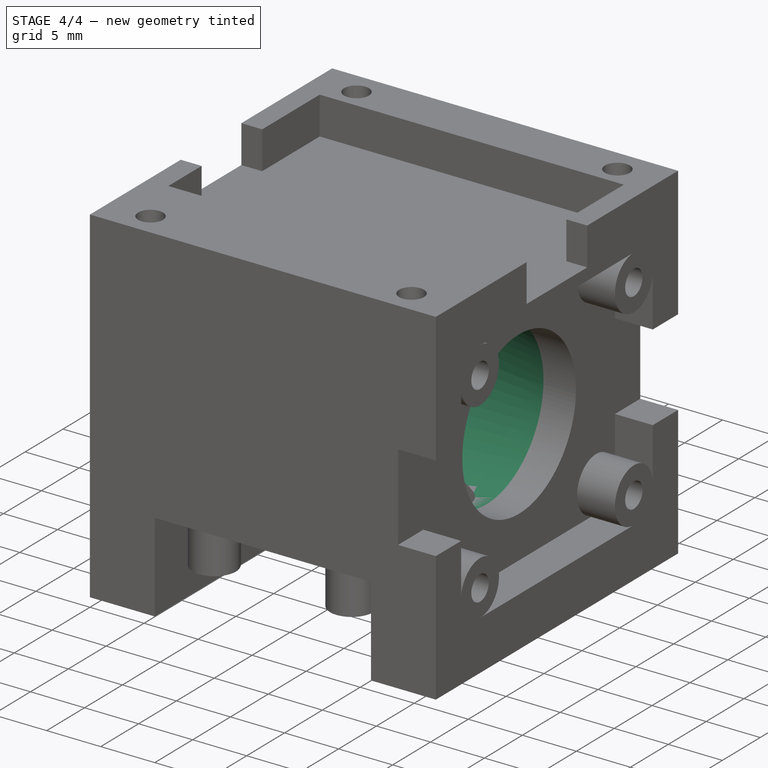
[diagram: stage 4 of 4 — iso view after this stage's code; geometry added in this stage tinted green]
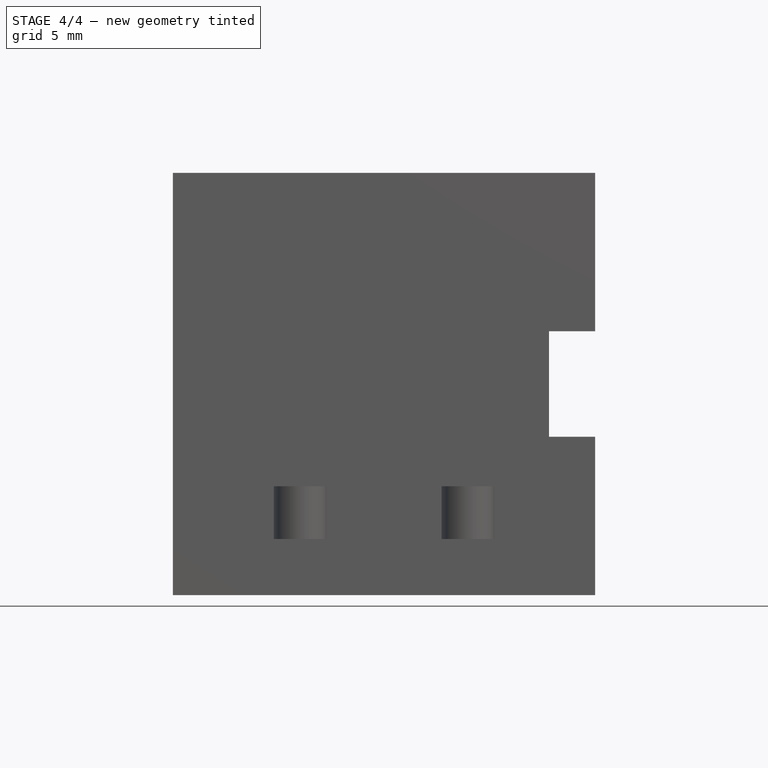
[diagram: stage 4 of 4 — front view after this stage's code; geometry added in this stage tinted green]
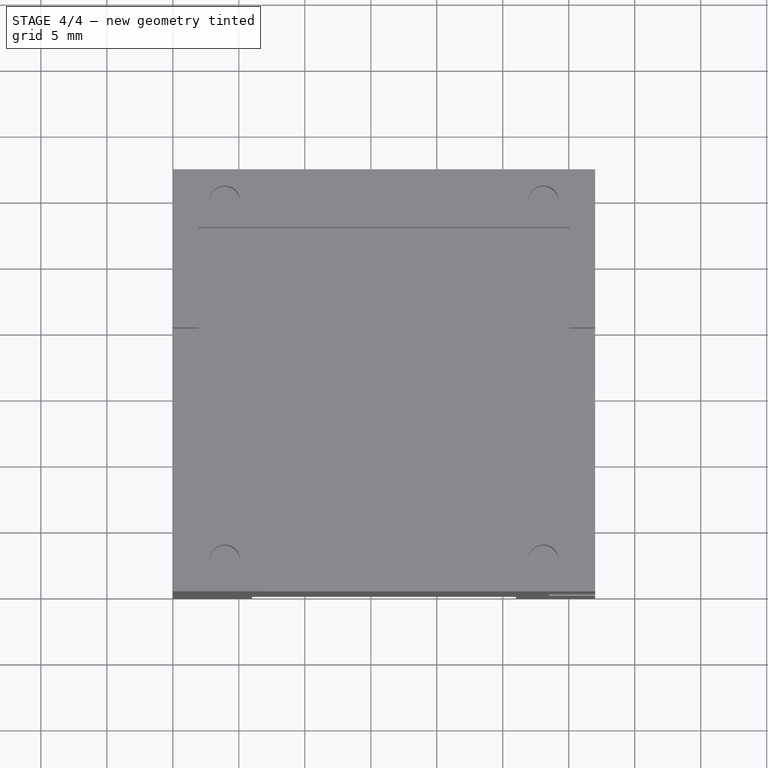
[diagram: stage 4 of 4 — top view after this stage's code; geometry added in this stage tinted green]
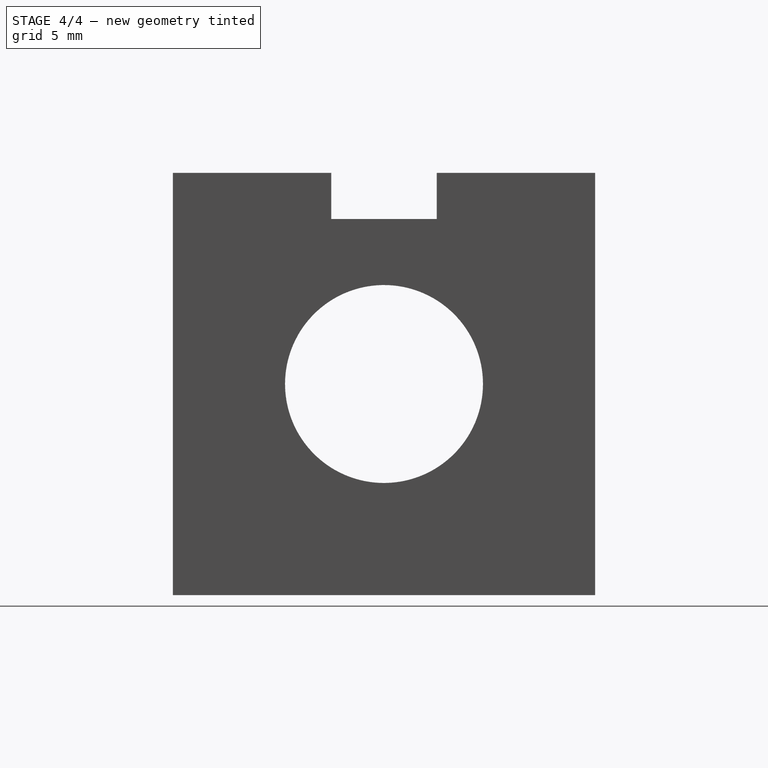
[diagram: stage 4 of 4 — right view after this stage's code; geometry added in this stage tinted green]
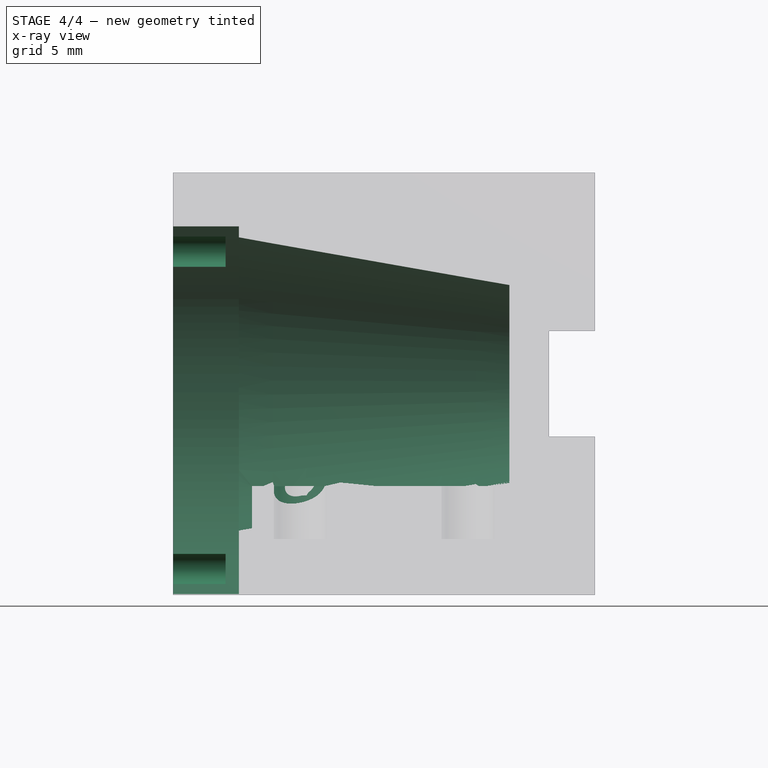
[diagram: stage 4 of 4 — x-ray composite at the front view; earlier geometry ghosted, this stage's added geometry solid]
FEATURE [Sketcher::SketchObject] Sketch009
  FullyConstrained = true
  MapMode = 5
  Placement = pos=(0,0,0) rot=(0.57735,-0.57735,-0.57735;2.0944rad)
  Support = -> [Pocket007]
  expr: Constraints[25] = <<cfg>>.fan_hole_x
  expr: Constraints[24] = <<cfg>>.side / 2
  expr: Constraints[26] = <<cfg>>.fan_hole_y
  expr: Constraints[23] = <<cfg>>.m25_tapped_d
  sketch-geometry (12):
    g0: Circle CenterX=-28.0225 CenterY=26.0225 CenterZ=0 NormalX=0 NormalY=0 NormalZ=1 AngleXU=0 Radius=1.15
    g1: LineSegment StartX=-3.9775 StartY=1.9775 StartZ=0 EndX=-28.0225 EndY=1.9775 EndZ=0
    g2: LineSegment StartX=-28.0225 StartY=1.9775 StartZ=0 EndX=-28.0225 EndY=26.0225 EndZ=0
    g3: LineSegment StartX=-28.0225 StartY=26.0225 StartZ=0 EndX=-3.9775 EndY=26.0225 EndZ=0
    g4: LineSegment StartX=-3.9775 StartY=26.0225 StartZ=0 EndX=-3.9775 EndY=1.9775 EndZ=0
    g5: LineSegment StartX=0 StartY=0 StartZ=0 EndX=-16 EndY=0 EndZ=0
    g6: LineSegment StartX=-16 StartY=0 StartZ=0 EndX=-16 EndY=1.9775 EndZ=0
    g7: LineSegment StartX=-3.9775 StartY=14 StartZ=0 EndX=0 EndY=14 EndZ=0
    g8: LineSegment StartX=0 StartY=14 StartZ=0 EndX=0 EndY=0 EndZ=0
    g9: Circle CenterX=-3.9775 CenterY=26.0225 CenterZ=0 NormalX=0 NormalY=0 NormalZ=1 AngleXU=0 Radius=1.15
    g10: Circle CenterX=-3.9775 CenterY=1.9775 CenterZ=0 NormalX=0 NormalY=0 NormalZ=1 AngleXU=0 Radius=1.15
    g11: Circle CenterX=-28.0225 CenterY=1.9775 CenterZ=0 NormalX=0 NormalY=0 NormalZ=1 AngleXU=0 Radius=1.15
  constraints (30):
    c: Coincident(g1,g2)
    c: Coincident(g2,g3)
    c: Coincident(g3,g4)
    c: Coincident(g4,g1)
    c: Horizontal(g1)
    c: Horizontal(g3)
    c: Vertical(g2)
    c: Vertical(g4)
    c: Coincident(g2,g0)
    c: Coincident(g5,g6)
    c: Coincident(g7,g8)
    c: Coincident(g8,g5)
    c: Horizontal(g5)
    c: Horizontal(g7)
    c: Vertical(g6)
    c: Vertical(g8)
    c: Coincident(g5,g-1)
    c: Coincident(g9,g3)
    c: Coincident(g10,g1)
    c: Coincident(g11,g1)
    c: Equal(g0,g9)
    c: Equal(g9,g10)
    c: Equal(g10,g11)
    c: Diameter(g0) = 2.3
    c: Distance(g5) = 16
    c: Distance(g3) = 24.045
    c: Distance(g4) = 24.045
    c: Distance(g8) = 14
    c: Symmetric(g9,g10,g7)
    c: Symmetric(g10,g11,g6)
FEATURE [PartDesign::Pocket] Pocket008  label="fan mounting holes"
  BaseFeature = -> Pocket007
  Length = 4
  Length2 = 100
  Profile = -> Sketch009
  Type = 0
FEATURE [Sketcher::SketchObject] Sketch010
  FullyConstrained = true
  MapMode = 5
  Placement = pos=(0,0,0) rot=(0.57735,-0.57735,-0.57735;2.0944rad)
  Support = -> [Pocket008]
  expr: Constraints[12] = <<cfg>>.fan_d
  expr: Constraints[11] = <<cfg>>.side / 2
  sketch-geometry (5):
    g0: Circle CenterX=-16 CenterY=14 CenterZ=0 NormalX=0 NormalY=0 NormalZ=1 AngleXU=0 Radius=13.95
    g1: LineSegment StartX=0 StartY=0 StartZ=0 EndX=-16 EndY=0 EndZ=0
    g2: LineSegment StartX=-16 StartY=0 StartZ=0 EndX=-16 EndY=14 EndZ=0
    g3: LineSegment StartX=-16 StartY=14 StartZ=0 EndX=0 EndY=14 EndZ=0
    g4: LineSegment StartX=0 StartY=14 StartZ=0 EndX=0 EndY=0 EndZ=0
  constraints (13):
    c: Coincident(g1,g2)
    c: Coincident(g2,g3)
    c: Coincident(g3,g4)
    c: Coincident(g4,g1)
    c: Horizontal(g1)
    c: Horizontal(g3)
    c: Vertical(g2)
    c: Vertical(g4)
    c: Coincident(g1,g-1)
    c: Coincident(g2,g0)
    c: Distance(g4) = 14
    c: Distance(g1) = 16
    c: Diameter(g0) = 27.9
FEATURE [PartDesign::Pocket] Pocket009  label="fan air clearance"
  BaseFeature = -> Pocket008
  Length = 5
  Length2 = 100
  Profile = -> Sketch010
  Type = 0
  expr: Length = (<<cfg>>.side - <<cfg>>.trinkey_clearance_x) / 2 - 1mm
FEATURE [PartDesign::Hole] Hole  label="air duct"
  BaseFeature = -> Pocket009
  Depth = 25
  DepthType = 0
  Diameter = 15
  DrillForDepth = false
  DrillPoint = 1
  DrillPointAngle = 118
  HoleCutCountersinkAngle = 90
  HoleCutCustomValues = false
  HoleCutDepth = 0
  HoleCutDiameter = 6.1
  HoleCutType = 0
  ModelActualThread = false
  Profile = -> Pocket009 [Face61]
  Tapered = true
  TaperedAngle = 100
  ThreadAngle = 0
  ThreadClass = 0
  ThreadCutOffInner = 0
  ThreadCutOffOuter = 0
  ThreadDirection = 0
  ThreadFit = 0
  ThreadPitch = 0
  ThreadSize = 0
  ThreadType = 0
  Threaded = false
  expr: Diameter = <<cfg>>.scd41_sensor_clearance_d
FEATURE [PartDesign::Body] Body
  Group = -> [Sketch,Pad,Sketch001,Pocket,Sketch002,Pocket001,Sketch003,Pocket002,Sketch004,Pocket003,Sketch005,Pocket004,Sketch006,Pocket005,Sketch007,Pocket006,Sketch008,Pocket007,Sketch009,Pocket008,Sketch010,Pocket009,Hole]
  Origin = -> Origin
  Tip = -> Hole
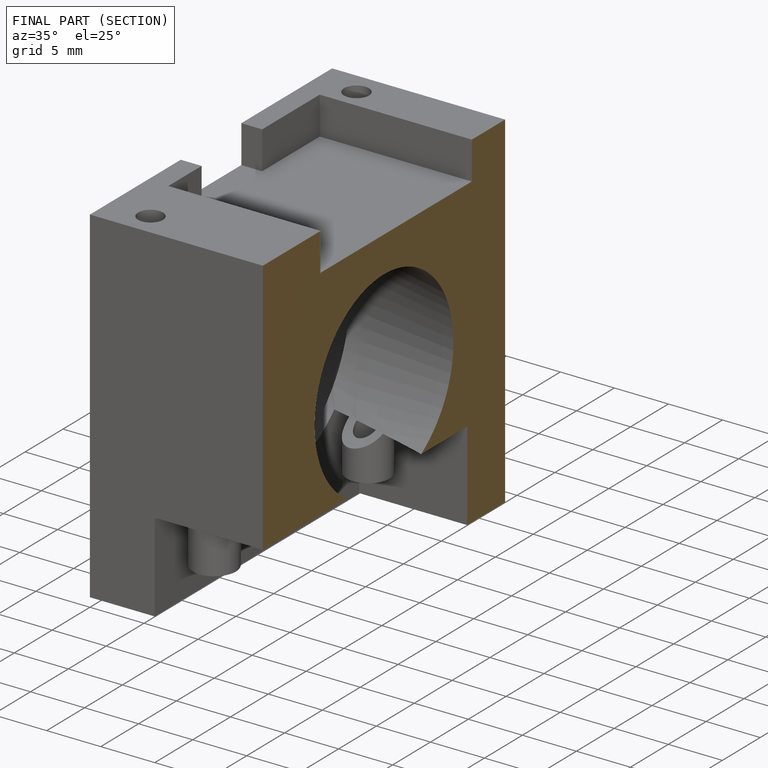
[diagram: finished part — half-section view (interior)]
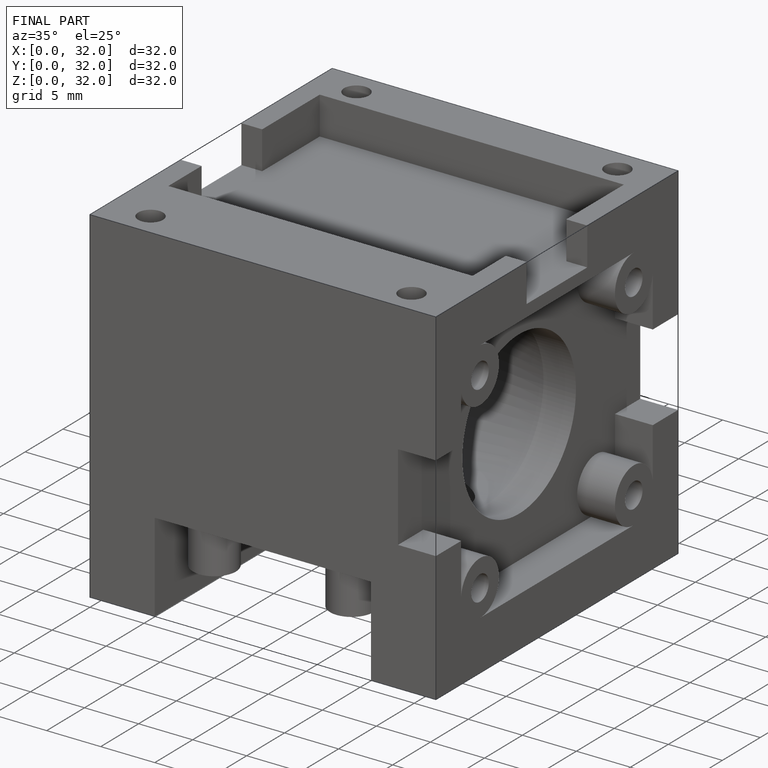
[diagram: finished part — iso view with bounding-box wireframe]
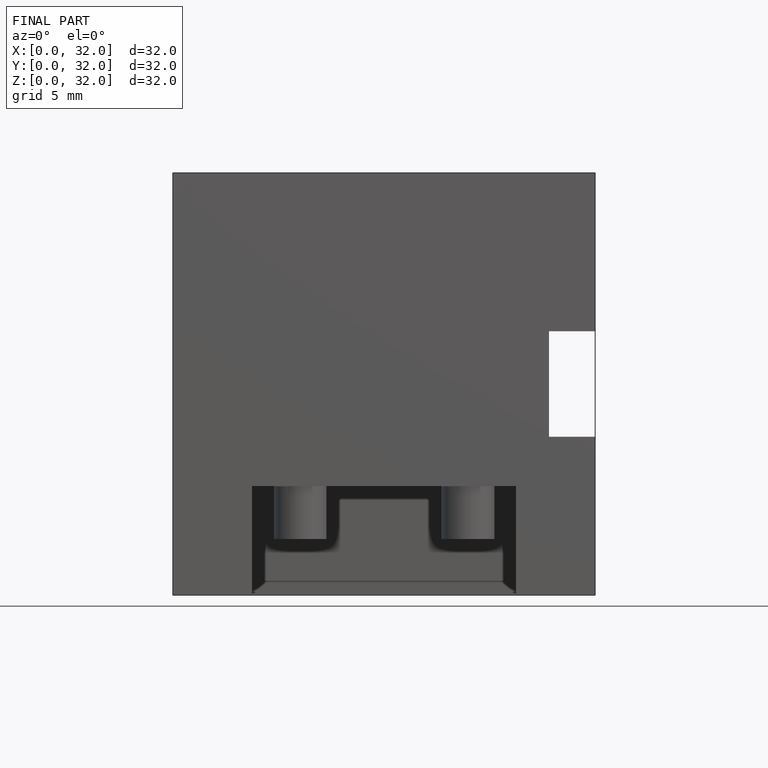
[diagram: finished part — front view with bounding-box wireframe]
